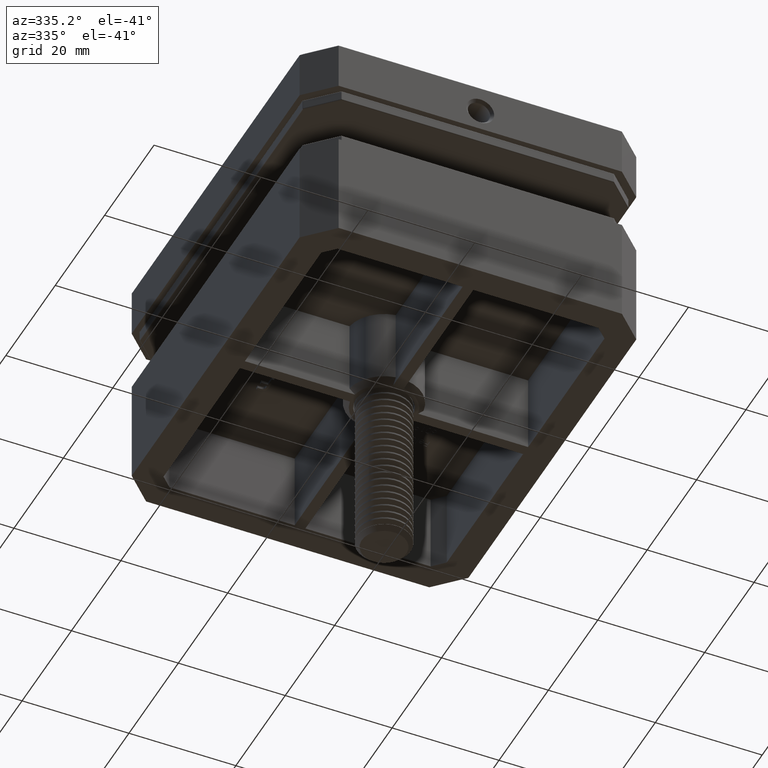
[diagram: clean part render]
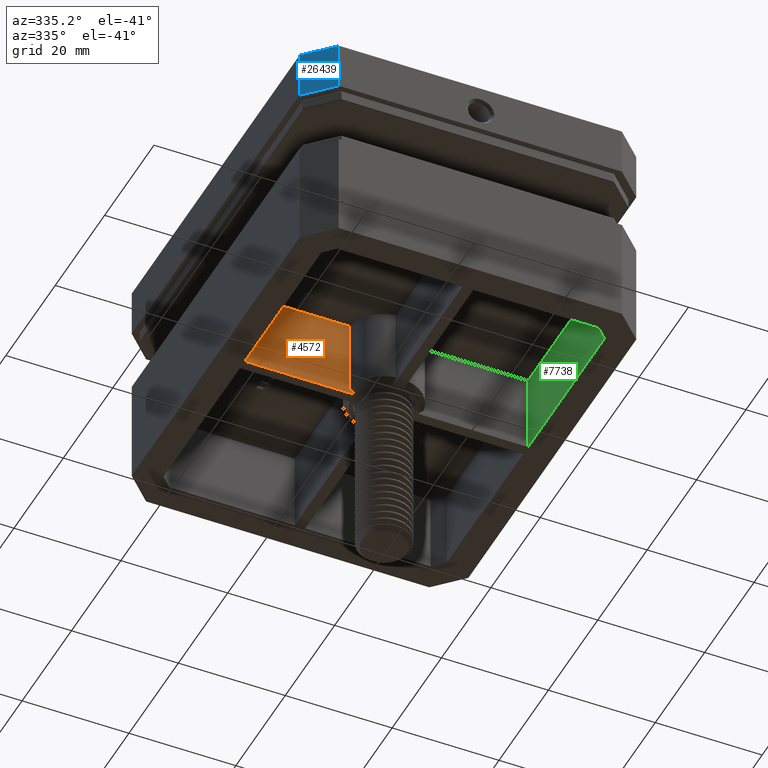
[diagram: same view with three faces highlighted in distinct colors, each labeled with its STEP entity id]
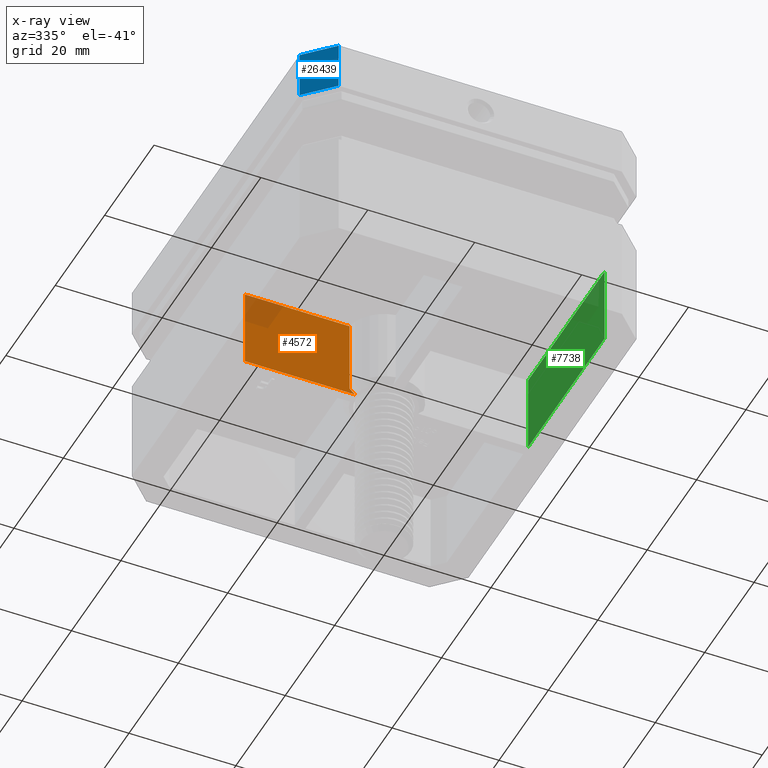
[diagram: x-ray of the same camera — body ghosted, the three highlighted faces saturated]
A machine part, auxiliary view with three faces highlighted in distinct colors.
The next image is the same camera in x-ray (body ghosted, the three faces saturated) — at least one of them is partly hidden behind the body in this view.
Their STEP definitions:

[orange] entity #4572 — the highlighted planar face has unit normal (0, -1, 0).
#467 = PLANE ( 'NONE',  #6029 ) ;
#506 = EDGE_CURVE ( 'NONE', #14022, #19681, #2743, .T. ) ;
#1498 = ORIENTED_EDGE ( 'NONE', *, *, #506, .T. ) ;
#2716 = CARTESIAN_POINT ( 'NONE',  ( -5.916079783099592149, -0.9999999999999920064, 0.000000000000000000 ) ) ;
#2743 = LINE ( 'NONE', #20520, #13996 ) ;
#2978 = DIRECTION ( 'NONE',  ( 1.000000000000000000, 1.883469070225076300E-16, 0.000000000000000000 ) ) ;
#2993 = ORIENTED_EDGE ( 'NONE', *, *, #14367, .F. ) ;
#4227 = VERTEX_POINT ( 'NONE', #17786 ) ;
#4572 = ADVANCED_FACE ( 'NONE', ( #20916 ), #467, .T. ) ;
#4900 = VECTOR ( 'NONE', #29358, 1000.000000000000000 ) ;
#4906 = CARTESIAN_POINT ( 'NONE',  ( -6.928203230275510549, -0.9999999999999922284, 1.000000000000011324 ) ) ;
#5003 = CARTESIAN_POINT ( 'NONE',  ( -6.591119008006870672, -0.9999999999999922284, 0.6663731432005156607 ) ) ;
#5217 = CARTESIAN_POINT ( 'NONE',  ( -6.253793210437224914, -0.9999999999999920064, 0.3329899299922367550 ) ) ;
#6029 = AXIS2_PLACEMENT_3D ( 'NONE', #12727, #22031, #2978 ) ;
#9283 = DIRECTION ( 'NONE',  ( 1.000000000000000000, 1.883469070225076300E-16, 0.000000000000000000 ) ) ;
#10099 = EDGE_CURVE ( 'NONE', #26614, #16304, #11294, .T. ) ;
#11294 = LINE ( 'NONE', #24462, #4900 ) ;
#12727 = CARTESIAN_POINT ( 'NONE',  ( 1.883469070225059536E-16, -0.9999999999999908962, -27.14557386280987217 ) ) ;
#13568 = CARTESIAN_POINT ( 'NONE',  ( -26.50000000000000000, -0.9999999999999940048, -27.14557386280987217 ) ) ;
#13996 = VECTOR ( 'NONE', #9283, 1000.000000000000000 ) ;
#14022 = VERTEX_POINT ( 'NONE', #21525 ) ;
#14367 = EDGE_CURVE ( 'NONE', #14022, #4227, #24999, .T. ) ;
#14566 = ORIENTED_EDGE ( 'NONE', *, *, #10099, .T. ) ;
#15597 = ORIENTED_EDGE ( 'NONE', *, *, #29909, .F. ) ;
#16304 = VERTEX_POINT ( 'NONE', #19065 ) ;
#17786 = CARTESIAN_POINT ( 'NONE',  ( -26.50000000000000000, -0.9999999999999940048, 15.00000000000000000 ) ) ;
#19065 = CARTESIAN_POINT ( 'NONE',  ( -6.928203230275510549, -0.9999999999999922284, 14.99999999999999645 ) ) ;
#19681 = VERTEX_POINT ( 'NONE', #24422 ) ;
#19772 = CARTESIAN_POINT ( 'NONE',  ( -6.928203230275510549, -0.9999999999999922284, 1.000000000000011324 ) ) ;
#20520 = CARTESIAN_POINT ( 'NONE',  ( 1.883469070225059536E-16, -0.9999999999999908962, 0.000000000000000000 ) ) ;
#20916 = FACE_OUTER_BOUND ( 'NONE', #30194, .T. ) ;
#21525 = CARTESIAN_POINT ( 'NONE',  ( -26.50000000000000000, -0.9999999999999940048, 0.000000000000000000 ) ) ;
#22031 = DIRECTION ( 'NONE',  ( 1.883469070225076300E-16, -1.000000000000000000, 0.000000000000000000 ) ) ;
#22302 = DIRECTION ( 'NONE',  ( 1.000000000000000000, 1.883469070225076546E-16, 0.000000000000000000 ) ) ;
#23100 = VECTOR ( 'NONE', #22302, 1000.000000000000000 ) ;
#24309 = ORIENTED_EDGE ( 'NONE', *, *, #28178, .T. ) ;
#24408 = CARTESIAN_POINT ( 'NONE',  ( 1.883469070225059536E-16, -0.9999999999999908962, 15.00000000000000000 ) ) ;
#24422 = CARTESIAN_POINT ( 'NONE',  ( -5.916079783099592149, -0.9999999999999920064, 0.000000000000000000 ) ) ;
#24462 = CARTESIAN_POINT ( 'NONE',  ( -6.928203230275510549, -0.9999999999999922284, -27.14557386280987217 ) ) ;
#24999 = LINE ( 'NONE', #13568, #30611 ) ;
#26614 = VERTEX_POINT ( 'NONE', #19772 ) ;
#26844 = LINE ( 'NONE', #24408, #23100 ) ;
#27927 = B_SPLINE_CURVE_WITH_KNOTS ( 'NONE', 3,
 ( #2716, #5217, #5003, #4906 ),
 .UNSPECIFIED., .F., .F.,
 ( 4, 4 ),
 ( 0.000000000000000000, 0.001422811959579791449 ),
 .UNSPECIFIED. ) ;
#28178 = EDGE_CURVE ( 'NONE', #19681, #26614, #27927, .T. ) ;
#29358 = DIRECTION ( 'NONE',  ( -0.000000000000000000, -0.000000000000000000, 1.000000000000000000 ) ) ;
#29909 = EDGE_CURVE ( 'NONE', #4227, #16304, #26844, .T. ) ;
#29987 = DIRECTION ( 'NONE',  ( -0.000000000000000000, -0.000000000000000000, 1.000000000000000000 ) ) ;
#30194 = EDGE_LOOP ( 'NONE', ( #2993, #1498, #24309, #14566, #15597 ) ) ;
#30611 = VECTOR ( 'NONE', #29987, 1000.000000000000000 ) ;

[blue] entity #26439 — the highlighted planar face has unit normal (0.7071, 0.7071, 0).
#429 = FACE_OUTER_BOUND ( 'NONE', #14766, .T. ) ;
#734 = LINE ( 'NONE', #4809, #26952 ) ;
#1999 = CARTESIAN_POINT ( 'NONE',  ( -26.49999999999998224, -39.00000000000001421, 10.00000000000000000 ) ) ;
#3463 = EDGE_CURVE ( 'NONE', #24043, #27537, #734, .T. ) ;
#3609 = EDGE_CURVE ( 'NONE', #7279, #27537, #19829, .T. ) ;
#4809 = CARTESIAN_POINT ( 'NONE',  ( -31.49999999999998579, -33.99999999999999289, 10.00000000000000000 ) ) ;
#5178 = EDGE_CURVE ( 'NONE', #7279, #19735, #7770, .T. ) ;
#5762 = VECTOR ( 'NONE', #21862, 1000.000000000000000 ) ;
#7019 = VECTOR ( 'NONE', #26777, 1000.000000000000000 ) ;
#7279 = VERTEX_POINT ( 'NONE', #20604 ) ;
#7532 = ORIENTED_EDGE ( 'NONE', *, *, #3609, .T. ) ;
#7770 = LINE ( 'NONE', #19358, #7019 ) ;
#9204 = PLANE ( 'NONE',  #11101 ) ;
#11101 = AXIS2_PLACEMENT_3D ( 'NONE', #1999, #14149, #18768 ) ;
#11534 = ORIENTED_EDGE ( 'NONE', *, *, #3463, .F. ) ;
#11873 = CARTESIAN_POINT ( 'NONE',  ( -31.49999999999998579, -33.99999999999999289, 9.000000000000000000 ) ) ;
#12166 = LINE ( 'NONE', #19443, #5762 ) ;
#12381 = ORIENTED_EDGE ( 'NONE', *, *, #16682, .F. ) ;
#14149 = DIRECTION ( 'NONE',  ( 0.7071067811865485719, 0.7071067811865465735, 0.000000000000000000 ) ) ;
#14766 = EDGE_LOOP ( 'NONE', ( #28725, #7532, #11534, #12381 ) ) ;
#16682 = EDGE_CURVE ( 'NONE', #19735, #24043, #12166, .T. ) ;
#17227 = VECTOR ( 'NONE', #24936, 1000.000000000000000 ) ;
#17939 = CARTESIAN_POINT ( 'NONE',  ( -26.49999999999998224, -39.00000000000001421, 9.000000000000000000 ) ) ;
#18768 = DIRECTION ( 'NONE',  ( -0.000000000000000000, 0.000000000000000000, -1.000000000000000000 ) ) ;
#19358 = CARTESIAN_POINT ( 'NONE',  ( -26.49999999999998224, -39.00000000000001421, 10.00000000000000000 ) ) ;
#19443 = CARTESIAN_POINT ( 'NONE',  ( -26.49999999999998224, -39.00000000000001421, 0.000000000000000000 ) ) ;
#19735 = VERTEX_POINT ( 'NONE', #24720 ) ;
#19829 = LINE ( 'NONE', #17939, #17227 ) ;
#20604 = CARTESIAN_POINT ( 'NONE',  ( -26.49999999999998224, -39.00000000000001421, 9.000000000000000000 ) ) ;
#21862 = DIRECTION ( 'NONE',  ( -0.7071067811865465735, 0.7071067811865485719, -0.000000000000000000 ) ) ;
#24043 = VERTEX_POINT ( 'NONE', #24333 ) ;
#24087 = DIRECTION ( 'NONE',  ( 0.000000000000000000, 0.000000000000000000, 1.000000000000000000 ) ) ;
#24333 = CARTESIAN_POINT ( 'NONE',  ( -31.49999999999998579, -33.99999999999999289, 0.000000000000000000 ) ) ;
#24720 = CARTESIAN_POINT ( 'NONE',  ( -26.49999999999998224, -39.00000000000001421, 0.000000000000000000 ) ) ;
#24936 = DIRECTION ( 'NONE',  ( -0.7071067811865465735, 0.7071067811865485719, -0.000000000000000000 ) ) ;
#26439 = ADVANCED_FACE ( 'NONE', ( #429 ), #9204, .F. ) ;
#26777 = DIRECTION ( 'NONE',  ( 0.000000000000000000, 0.000000000000000000, -1.000000000000000000 ) ) ;
#26952 = VECTOR ( 'NONE', #24087, 1000.000000000000000 ) ;
#27537 = VERTEX_POINT ( 'NONE', #11873 ) ;
#28725 = ORIENTED_EDGE ( 'NONE', *, *, #5178, .F. ) ;

[green] entity #7738 — the highlighted planar face has unit normal (1, 0, 0).
#255 = VECTOR ( 'NONE', #29014, 1000.000000000000000 ) ;
#557 = CARTESIAN_POINT ( 'NONE',  ( 26.49999999999999289, 39.00000000000001421, 20.00000000000000000 ) ) ;
#569 = CARTESIAN_POINT ( 'NONE',  ( 26.50000000000000711, -31.92893218813451384, 0.000000000000000000 ) ) ;
#2968 = CARTESIAN_POINT ( 'NONE',  ( 26.50000000000000711, -31.92893218813450673, 20.00000000000000000 ) ) ;
#3079 = DIRECTION ( 'NONE',  ( 1.000000000000000000, 1.779203565104417868E-16, -0.000000000000000000 ) ) ;
#4369 = EDGE_CURVE ( 'NONE', #10753, #18284, #4797, .T. ) ;
#4797 = LINE ( 'NONE', #22805, #13459 ) ;
#5385 = FACE_OUTER_BOUND ( 'NONE', #22273, .T. ) ;
#5467 = ORIENTED_EDGE ( 'NONE', *, *, #29620, .F. ) ;
#5751 = CARTESIAN_POINT ( 'NONE',  ( 26.50000000000000000, -1.000000000000002442, 0.000000000000000000 ) ) ;
#5892 = AXIS2_PLACEMENT_3D ( 'NONE', #557, #3079, #17736 ) ;
#6199 = VERTEX_POINT ( 'NONE', #5751 ) ;
#6287 = LINE ( 'NONE', #15080, #11179 ) ;
#7738 = ADVANCED_FACE ( 'NONE', ( #5385 ), #27244, .F. ) ;
#9995 = ORIENTED_EDGE ( 'NONE', *, *, #20128, .T. ) ;
#10753 = VERTEX_POINT ( 'NONE', #20534 ) ;
#11087 = CARTESIAN_POINT ( 'NONE',  ( 26.50000000000000000, -1.000000000000002442, -27.14557386280987217 ) ) ;
#11179 = VECTOR ( 'NONE', #29707, 1000.000000000000000 ) ;
#11787 = ORIENTED_EDGE ( 'NONE', *, *, #4369, .F. ) ;
#13459 = VECTOR ( 'NONE', #18210, 1000.000000000000000 ) ;
#14133 = ORIENTED_EDGE ( 'NONE', *, *, #26719, .F. ) ;
#15080 = CARTESIAN_POINT ( 'NONE',  ( 26.50000000000000000, 4.714889447526707756E-15, 0.000000000000000000 ) ) ;
#16507 = VECTOR ( 'NONE', #22925, 1000.000000000000000 ) ;
#17736 = DIRECTION ( 'NONE',  ( -1.779203565104417868E-16, 1.000000000000000000, 0.000000000000000000 ) ) ;
#18210 = DIRECTION ( 'NONE',  ( 1.779203565104417868E-16, -1.000000000000000000, 0.000000000000000000 ) ) ;
#18284 = VERTEX_POINT ( 'NONE', #24966 ) ;
#19287 = VERTEX_POINT ( 'NONE', #569 ) ;
#20128 = EDGE_CURVE ( 'NONE', #6199, #19287, #6287, .T. ) ;
#20476 = LINE ( 'NONE', #2968, #255 ) ;
#20534 = CARTESIAN_POINT ( 'NONE',  ( 26.50000000000000000, -1.000000000000002442, 15.00000000000000000 ) ) ;
#22273 = EDGE_LOOP ( 'NONE', ( #11787, #14133, #9995, #5467 ) ) ;
#22805 = CARTESIAN_POINT ( 'NONE',  ( 26.50000000000000000, 4.714889447526707756E-15, 15.00000000000000000 ) ) ;
#22925 = DIRECTION ( 'NONE',  ( -0.000000000000000000, -0.000000000000000000, 1.000000000000000000 ) ) ;
#24966 = CARTESIAN_POINT ( 'NONE',  ( 26.50000000000000711, -31.92893218813451384, 15.00000000000000000 ) ) ;
#25514 = LINE ( 'NONE', #11087, #16507 ) ;
#26719 = EDGE_CURVE ( 'NONE', #6199, #10753, #25514, .T. ) ;
#27244 = PLANE ( 'NONE',  #5892 ) ;
#29014 = DIRECTION ( 'NONE',  ( -0.000000000000000000, 0.000000000000000000, -1.000000000000000000 ) ) ;
#29620 = EDGE_CURVE ( 'NONE', #18284, #19287, #20476, .T. ) ;
#29707 = DIRECTION ( 'NONE',  ( 1.779203565104417868E-16, -1.000000000000000000, 0.000000000000000000 ) ) ;